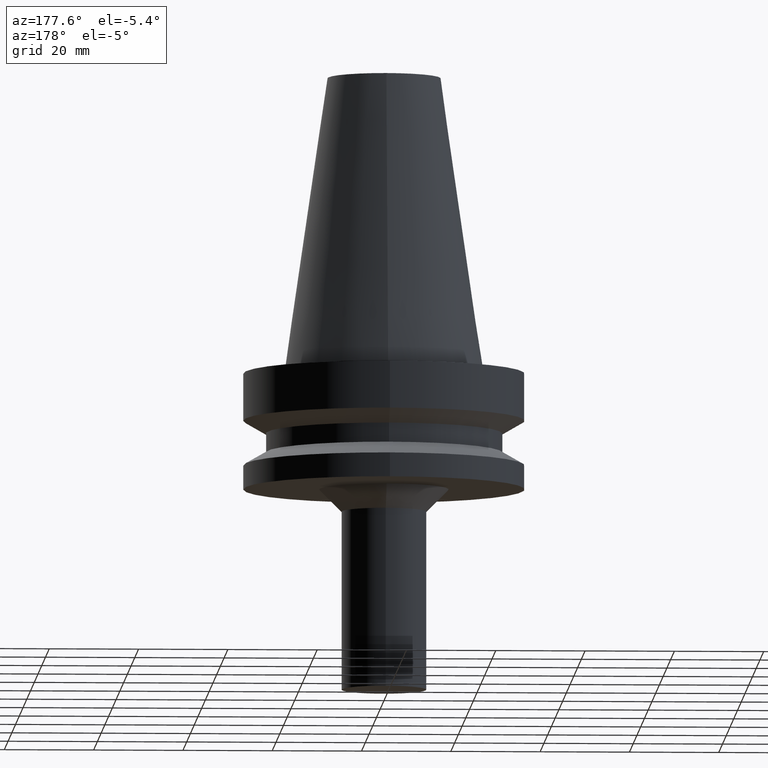
[diagram: clean part render]
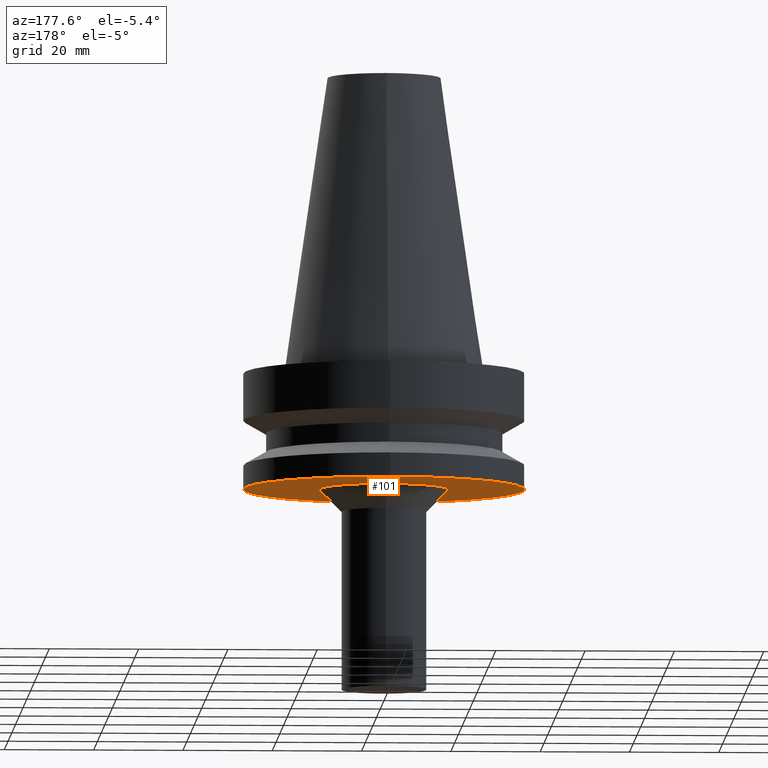
[diagram: same view with one face highlighted and labeled with its STEP entity id]
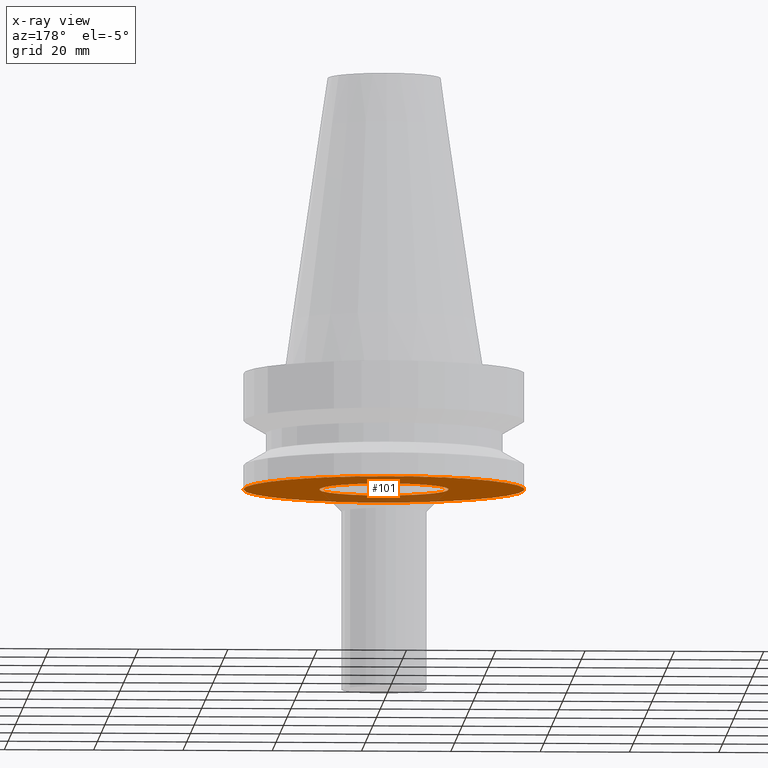
[diagram: x-ray of the same camera — body ghosted, the highlighted face saturated]
A machine part, auxiliary view. The second image highlights one B-rep face of the part: STEP entity #101.
The next image is the same camera in x-ray: the body ghosted, the highlighted face saturated — about 18% of this face is hidden behind the body in this view.
In plain terms, the highlighted planar face has unit normal (0, 0, -1).
Its self-contained STEP definition (entity closure, byte-faithful):
#58=EDGE_CURVE('Unnamed[1]',#144,#144,#145,.T.);
#77=EDGE_CURVE('Unnamed[1]',#174,#174,#175,.T.);
#101=ADVANCED_FACE('Unnamed[1]',(#209,#210),#211,.T.);
#144=VERTEX_POINT('',#256);
#145=CIRCLE('',#257,14.5);
#174=VERTEX_POINT('',#294);
#175=CIRCLE('',#295,31.5000000000004);
#209=FACE_BOUND('',#337,.T.);
#210=FACE_OUTER_BOUND('',#338,.T.);
#211=PLANE('',#339);
#256=CARTESIAN_POINT('',(5.9952043329758E-015,14.5,-26.9999999999998));
#257=AXIS2_PLACEMENT_3D('',#381,#382,#383);
#294=CARTESIAN_POINT('',(5.99520433297579E-015,31.5000000000004,-26.9999999999998));
#295=AXIS2_PLACEMENT_3D('',#414,#415,#416);
#337=EDGE_LOOP('',(#451));
#338=EDGE_LOOP('',(#452));
#339=AXIS2_PLACEMENT_3D('',#453,#454,#455);
#381=CARTESIAN_POINT('',(5.9952043329758E-015,1.29748499614054E-014,-26.9999999999998));
#382=DIRECTION('',(2.22044604925031E-016,-6.87296523471693E-016,-1.0));
#383=DIRECTION('',(1.73640130667518E-031,1.0,-6.87296523471693E-016));
#414=CARTESIAN_POINT('',(5.99520433297579E-015,1.29748499614055E-014,-26.9999999999997));
#415=DIRECTION('',(2.22044604925031E-016,-6.87296523471693E-016,-1.0));
#416=DIRECTION('',(1.73640130667518E-031,1.0,-6.87296523471693E-016));
#451=ORIENTED_EDGE('',*,*,#58,.F.);
#452=ORIENTED_EDGE('',*,*,#77,.T.);
#453=CARTESIAN_POINT('',(5.9952043329758E-015,23.0000000000002,-26.9999999999998));
#454=DIRECTION('',(2.22044604925031E-016,2.63026257083268E-015,-1.0));
#455=DIRECTION('',(-5.63005967742741E-031,1.0,2.63026257083268E-015));